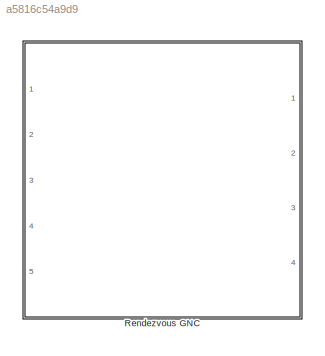
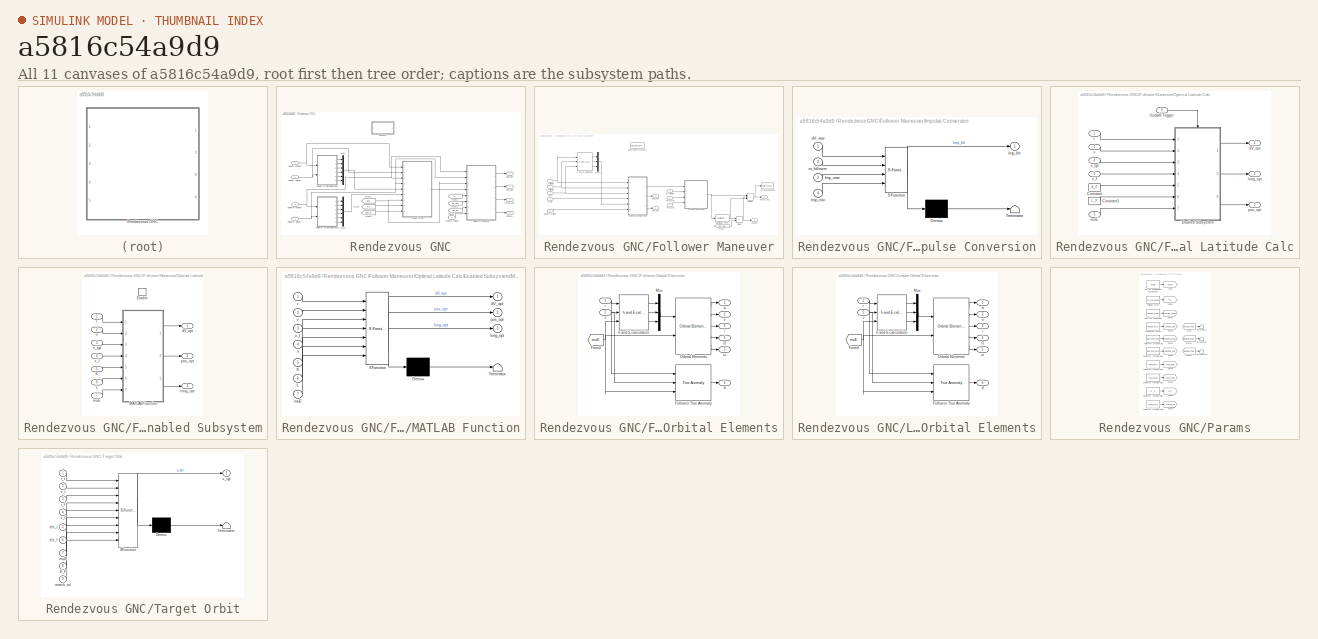
[diagram: thumbnail index - all 11 canvases of the model, root first then tree order]
MODEL slx_a5816c54a9d9
KIND model
CONFIG AbsTol = auto
CONFIG EnableMultiTasking = off
CONFIG FixedStep = auto
CONFIG MaxStep = auto
CONFIG MinStep = auto
CONFIG RelTol = 1e-3
CONFIG SampleTimeConstraint = Unconstrained
CONFIG Solver = VariableStepAuto
CONFIG SolverName = VariableStepAuto
CONFIG StartTime = 0.0
CONFIG StopTime = 10.0
BLOCK [SubSystem] Rendezvous GNC
  Ports = [5, 4]
  RequestExecContextInheritance = off
  Variant = off
BLOCK [SubSystem] Rendezvous GNC/Follower Maneuver
  Ports = [8, 4]
  RequestExecContextInheritance = off
  Variant = off
BLOCK [DataStoreMemory] Rendezvous GNC/Follower Maneuver/Data Store Memory
  DataStoreName = man_flag
  ShowAdditionalParam = off
  WriteAfterReadMsg = warning
  WriteAfterWriteMsg = warning
BLOCK [Product] Rendezvous GNC/Follower Maneuver/Divide
  InputSameDT = off
  Inputs = */
  OutDataTypeStr = Inherit: Inherit via internal rule
  Ports = [2, 1]
  RndMeth = Floor
  SaturateOnIntegerOverflow = off
BLOCK [Product] Rendezvous GNC/Follower Maneuver/Divide1
  InputSameDT = off
  Inputs = **/
  OutDataTypeStr = Inherit: Inherit via internal rule
  Ports = [3, 1]
  RndMeth = Floor
  SaturateOnIntegerOverflow = off
BLOCK [Reference] Rendezvous GNC/Follower Maneuver/Euclidean norm  REF=hEemethod/Math Operations/Euclidean norm
  Ports = [1, 1]
  SourceBlock = hEemethod/Math Operations/Euclidean norm
  SourceProductName = HEe Method Library
  SourceType = Euclidean Norm
BLOCK [From] Rendezvous GNC/Follower Maneuver/From4
  GotoTag = Thrust_max
  TagVisibility = global
BLOCK [Inport] Rendezvous GNC/Follower Maneuver/Imp_max
  IconDisplay = Port number
  Port = 6
BLOCK [Inport] Rendezvous GNC/Follower Maneuver/Imp_min
  IconDisplay = Port number
  Port = 7
BLOCK [SubSystem] Rendezvous GNC/Follower Maneuver/Impulse Conversion
  ErrorFcn = Stateflow.Translate.translate
  PermitHierarchicalResolution = ExplicitOnly
  Ports = [4, 1]
  RequestExecContextInheritance = off
  SFBlockType = MATLAB Function
  TreatAsAtomicUnit = on
  Variant = off
BLOCK [Demux] Rendezvous GNC/Follower Maneuver/Impulse Conversion/ Demux 
  Outputs = 1
  Ports = [1, 1]
BLOCK [S-Function] Rendezvous GNC/Follower Maneuver/Impulse Conversion/ SFunction 
  EnableBusSupport = on
  FunctionName = sf_sfun
  PortCounts = [4 2]
  Ports = [4, 2]
  SFcnIsStateOwnerBlock = off
  SFunctionDeploymentMode = off
  Tag = Stateflow S-Function PAN_rendezvous_GNC_block 7
BLOCK [Terminator] Rendezvous GNC/Follower Maneuver/Impulse Conversion/ Terminator 
BLOCK [Outport] Rendezvous GNC/Follower Maneuver/Impulse Conversion/Imp_filt
  IconDisplay = Port number
BLOCK [Inport] Rendezvous GNC/Follower Maneuver/Impulse Conversion/Imp_max
  IconDisplay = Port number
  Port = 3
BLOCK [Inport] Rendezvous GNC/Follower Maneuver/Impulse Conversion/Imp_min
  IconDisplay = Port number
  Port = 4
BLOCK [Inport] Rendezvous GNC/Follower Maneuver/Impulse Conversion/dV_raw
  IconDisplay = Port number
BLOCK [Inport] Rendezvous GNC/Follower Maneuver/Impulse Conversion/m_follower
  IconDisplay = Port number
  Port = 2
BLOCK [Mux] Rendezvous GNC/Follower Maneuver/Mux1
  DisplayOption = bar
  Inputs = 3
  Ports = [3, 1]
BLOCK [SubSystem] Rendezvous GNC/Follower Maneuver/Optimal Latitude Calc
  Ports = [6, 3]
  RequestExecContextInheritance = off
  Variant = off
BLOCK [Constant] Rendezvous GNC/Follower Maneuver/Optimal Latitude Calc/Constant
  Value = K_F
BLOCK [Constant] Rendezvous GNC/Follower Maneuver/Optimal Latitude Calc/Constant1
  Value = L_F
BLOCK [SubSystem] Rendezvous GNC/Follower Maneuver/Optimal Latitude Calc/Enabled Subsystem
  Ports = [7, 3, 1]
  RequestExecContextInheritance = off
  TreatAsAtomicUnit = on
  Variant = off
BLOCK [EnablePort] Rendezvous GNC/Follower Maneuver/Optimal Latitude Calc/Enabled Subsystem/Enable
  Ports = []
BLOCK [Inport] Rendezvous GNC/Follower Maneuver/Optimal Latitude Calc/Enabled Subsystem/K
  IconDisplay = Port number
  Port = 5
BLOCK [Inport] Rendezvous GNC/Follower Maneuver/Optimal Latitude Calc/Enabled Subsystem/L
  IconDisplay = Port number
  Port = 6
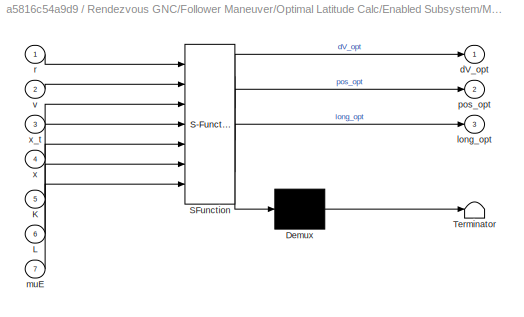
BLOCK [SubSystem] Rendezvous GNC/Follower Maneuver/Optimal Latitude Calc/Enabled Subsystem/MATLAB Function
  ErrorFcn = Stateflow.Translate.translate
  PermitHierarchicalResolution = ExplicitOnly
  Ports = [7, 3]
  RequestExecContextInheritance = off
  SFBlockType = MATLAB Function
  TreatAsAtomicUnit = on
  Variant = off
BLOCK [Demux] Rendezvous GNC/Follower Maneuver/Optimal Latitude Calc/Enabled Subsystem/MATLAB Function/ Demux 
  Outputs = 1
  Ports = [1, 1]
BLOCK [S-Function] Rendezvous GNC/Follower Maneuver/Optimal Latitude Calc/Enabled Subsystem/MATLAB Function/ SFunction 
  EnableBusSupport = on
  FunctionName = sf_sfun
  PortCounts = [7 4]
  Ports = [7, 4]
  SFcnIsStateOwnerBlock = off
  SFunctionDeploymentMode = off
  Tag = Stateflow S-Function PAN_rendezvous_GNC_block 5
BLOCK [Terminator] Rendezvous GNC/Follower Maneuver/Optimal Latitude Calc/Enabled Subsystem/MATLAB Function/ Terminator 
BLOCK [Inport] Rendezvous GNC/Follower Maneuver/Optimal Latitude Calc/Enabled Subsystem/MATLAB Function/K
  IconDisplay = Port number
  Port = 5
BLOCK [Inport] Rendezvous GNC/Follower Maneuver/Optimal Latitude Calc/Enabled Subsystem/MATLAB Function/L
  IconDisplay = Port number
  Port = 6
BLOCK [Outport] Rendezvous GNC/Follower Maneuver/Optimal Latitude Calc/Enabled Subsystem/MATLAB Function/dV_opt
  IconDisplay = Port number
BLOCK [Outport] Rendezvous GNC/Follower Maneuver/Optimal Latitude Calc/Enabled Subsystem/MATLAB Function/long_opt
  IconDisplay = Port number
  Port = 3
BLOCK [Inport] Rendezvous GNC/Follower Maneuver/Optimal Latitude Calc/Enabled Subsystem/MATLAB Function/muE
  IconDisplay = Port number
  Port = 7
BLOCK [Outport] Rendezvous GNC/Follower Maneuver/Optimal Latitude Calc/Enabled Subsystem/MATLAB Function/pos_opt
  IconDisplay = Port number
  Port = 2
BLOCK [Inport] Rendezvous GNC/Follower Maneuver/Optimal Latitude Calc/Enabled Subsystem/MATLAB Function/r
  IconDisplay = Port number
BLOCK [Inport] Rendezvous GNC/Follower Maneuver/Optimal Latitude Calc/Enabled Subsystem/MATLAB Function/v
  IconDisplay = Port number
  Port = 2
BLOCK [Inport] Rendezvous GNC/Follower Maneuver/Optimal Latitude Calc/Enabled Subsystem/MATLAB Function/x
  IconDisplay = Port number
  Port = 4
BLOCK [Inport] Rendezvous GNC/Follower Maneuver/Optimal Latitude Calc/Enabled Subsystem/MATLAB Function/x_t
  IconDisplay = Port number
  Port = 3
BLOCK [Outport] Rendezvous GNC/Follower Maneuver/Optimal Latitude Calc/Enabled Subsystem/dV_opt
  IconDisplay = Port number
BLOCK [Outport] Rendezvous GNC/Follower Maneuver/Optimal Latitude Calc/Enabled Subsystem/long_opt
  IconDisplay = Port number
  Port = 2
BLOCK [Inport] Rendezvous GNC/Follower Maneuver/Optimal Latitude Calc/Enabled Subsystem/muE 
  IconDisplay = Port number
  Port = 7
BLOCK [Outport] Rendezvous GNC/Follower Maneuver/Optimal Latitude Calc/Enabled Subsystem/pos_opt
  IconDisplay = Port number
  Port = 3
BLOCK [Inport] Rendezvous GNC/Follower Maneuver/Optimal Latitude Calc/Enabled Subsystem/r
  IconDisplay = Port number
BLOCK [Inport] Rendezvous GNC/Follower Maneuver/Optimal Latitude Calc/Enabled Subsystem/v
  IconDisplay = Port number
  Port = 2
BLOCK [Inport] Rendezvous GNC/Follower Maneuver/Optimal Latitude Calc/Enabled Subsystem/x_f
  IconDisplay = Port number
  Port = 4
BLOCK [Inport] Rendezvous GNC/Follower Maneuver/Optimal Latitude Calc/Enabled Subsystem/x_tgt
  IconDisplay = Port number
  Port = 3
BLOCK [Inport] Rendezvous GNC/Follower Maneuver/Optimal Latitude Calc/Update Trigger
  IconDisplay = Port number
  Port = 6
BLOCK [Outport] Rendezvous GNC/Follower Maneuver/Optimal Latitude Calc/dV_opt
  IconDisplay = Port number
BLOCK [Outport] Rendezvous GNC/Follower Maneuver/Optimal Latitude Calc/long_opt
  IconDisplay = Port number
  Port = 2
BLOCK [Inport] Rendezvous GNC/Follower Maneuver/Optimal Latitude Calc/muE
  IconDisplay = Port number
  Port = 3
BLOCK [Outport] Rendezvous GNC/Follower Maneuver/Optimal Latitude Calc/pos_opt
  IconDisplay = Port number
  Port = 3
BLOCK [Inport] Rendezvous GNC/Follower Maneuver/Optimal Latitude Calc/r 
  IconDisplay = Port number
BLOCK [Inport] Rendezvous GNC/Follower Maneuver/Optimal Latitude Calc/v 
  IconDisplay = Port number
  Port = 2
BLOCK [Inport] Rendezvous GNC/Follower Maneuver/Optimal Latitude Calc/x_f
  IconDisplay = Port number
  Port = 5
BLOCK [Inport] Rendezvous GNC/Follower Maneuver/Optimal Latitude Calc/x_tgt
  IconDisplay = Port number
  Port = 4
BLOCK [Outport] Rendezvous GNC/Follower Maneuver/Thrust_vec
  IconDisplay = Port number
  Port = 3
BLOCK [ToWorkspace] Rendezvous GNC/Follower Maneuver/To Workspace2
  FixptAsFi = on
  MaxDataPoints = inf
  Ports = [1]
  SampleTime = -1
  Save2DSignal = 3-D array (concatenate along third dimension)
  SaveFormat = Timeseries
  VariableName = Thrust_vec
BLOCK [Inport] Rendezvous GNC/Follower Maneuver/Update Trigger
  IconDisplay = Port number
  Port = 8
BLOCK [Reference] Rendezvous GNC/Follower Maneuver/h and E calculation  REF=hEemethod/Math Operations/h and E calculation
  Ports = [3, 3]
  SourceBlock = hEemethod/Math Operations/h and E calculation
  SourceProductName = HEe Method Library
  SourceType = hEe Calculation
BLOCK [Outport] Rendezvous GNC/Follower Maneuver/long_opt
  IconDisplay = Port number
BLOCK [Inport] Rendezvous GNC/Follower Maneuver/m_follower
  IconDisplay = Port number
  Port = 5
BLOCK [Inport] Rendezvous GNC/Follower Maneuver/mu
  IconDisplay = Port number
  Port = 3
BLOCK [Outport] Rendezvous GNC/Follower Maneuver/ontime
  IconDisplay = Port number
  Port = 4
BLOCK [Outport] Rendezvous GNC/Follower Maneuver/pos_opt
  IconDisplay = Port number
  Port = 2
BLOCK [Inport] Rendezvous GNC/Follower Maneuver/r_follower
  IconDisplay = Port number
BLOCK [Inport] Rendezvous GNC/Follower Maneuver/v_follower
  IconDisplay = Port number
  Port = 2
BLOCK [Inport] Rendezvous GNC/Follower Maneuver/x_tgt
  IconDisplay = Port number
  Port = 4
BLOCK [SubSystem] Rendezvous GNC/Follower Orbital Elements
  Ports = [2, 6]
  RequestExecContextInheritance = off
  Variant = off
BLOCK [Reference] Rendezvous GNC/Follower Orbital Elements/Follower True Anomaly  REF=hEemethod/Math Operations/True Anomaly
  Ports = [3, 1]
  SourceBlock = hEemethod/Math Operations/True Anomaly
  SourceProductName = HEe Method Library
  SourceType = True Anomaly
BLOCK [From] Rendezvous GNC/Follower Orbital Elements/From4
  GotoTag = muE
  TagVisibility = global
BLOCK [Mux] Rendezvous GNC/Follower Orbital Elements/Mux
  DisplayOption = bar
  Inputs = 3
  Ports = [3, 1]
BLOCK [Reference] Rendezvous GNC/Follower Orbital Elements/Orbital Elements  REF=hEemethod/Math Operations/Orbital Elements
  Ports = [2, 5]
  SourceBlock = hEemethod/Math Operations/Orbital Elements
  SourceProductName = HEe Method Library
  SourceType = Orbital Elements
BLOCK [Outport] Rendezvous GNC/Follower Orbital Elements/a
  IconDisplay = Port number
BLOCK [Outport] Rendezvous GNC/Follower Orbital Elements/e
  IconDisplay = Port number
  Port = 2
BLOCK [Reference] Rendezvous GNC/Follower Orbital Elements/h and E calculation  REF=hEemethod/Math Operations/h and E calculation
  Ports = [3, 3]
  SourceBlock = hEemethod/Math Operations/h and E calculation
  SourceProductName = HEe Method Library
  SourceType = hEe Calculation
BLOCK [Outport] Rendezvous GNC/Follower Orbital Elements/i
  IconDisplay = Port number
  Port = 3
BLOCK [Inport] Rendezvous GNC/Follower Orbital Elements/r
  IconDisplay = Port number
BLOCK [Inport] Rendezvous GNC/Follower Orbital Elements/v
  IconDisplay = Port number
  Port = 2
BLOCK [Outport] Rendezvous GNC/Follower Orbital Elements/Ω
  IconDisplay = Port number
  Port = 4
BLOCK [Outport] Rendezvous GNC/Follower Orbital Elements/θ
  IconDisplay = Port number
  Port = 6
BLOCK [Outport] Rendezvous GNC/Follower Orbital Elements/ω
  IconDisplay = Port number
  Port = 5
BLOCK [Inport] Rendezvous GNC/Follower Position
  IconDisplay = Port number
BLOCK [Inport] Rendezvous GNC/Follower Velocity
  IconDisplay = Port number
  Port = 2
BLOCK [From] Rendezvous GNC/From1
  GotoTag = m_f
  TagVisibility = global
BLOCK [From] Rendezvous GNC/From2
  GotoTag = Imp_max
  TagVisibility = global
BLOCK [From] Rendezvous GNC/From3
  GotoTag = muE
  TagVisibility = global
BLOCK [From] Rendezvous GNC/From4
  GotoTag = K_F
  TagVisibility = global
BLOCK [From] Rendezvous GNC/From5
  GotoTag = match_tol
  TagVisibility = global
BLOCK [From] Rendezvous GNC/From6
  GotoTag = Imp_min
  TagVisibility = global
BLOCK [SubSystem] Rendezvous GNC/Leader Orbital Elements
  Ports = [2, 6]
  RequestExecContextInheritance = off
  Variant = off
BLOCK [Reference] Rendezvous GNC/Leader Orbital Elements/Follower True Anomaly  REF=hEemethod/Math Operations/True Anomaly
  Ports = [3, 1]
  SourceBlock = hEemethod/Math Operations/True Anomaly
  SourceProductName = HEe Method Library
  SourceType = True Anomaly
BLOCK [From] Rendezvous GNC/Leader Orbital Elements/From4
  GotoTag = muE
  TagVisibility = global
BLOCK [Mux] Rendezvous GNC/Leader Orbital Elements/Mux
  DisplayOption = bar
  Inputs = 3
  Ports = [3, 1]
BLOCK [Reference] Rendezvous GNC/Leader Orbital Elements/Orbital Elements  REF=hEemethod/Math Operations/Orbital Elements
  Ports = [2, 5]
  SourceBlock = hEemethod/Math Operations/Orbital Elements
  SourceProductName = HEe Method Library
  SourceType = Orbital Elements
BLOCK [Outport] Rendezvous GNC/Leader Orbital Elements/a
  IconDisplay = Port number
BLOCK [Outport] Rendezvous GNC/Leader Orbital Elements/e
  IconDisplay = Port number
  Port = 2
BLOCK [Reference] Rendezvous GNC/Leader Orbital Elements/h and E calculation  REF=hEemethod/Math Operations/h and E calculation
  Ports = [3, 3]
  SourceBlock = hEemethod/Math Operations/h and E calculation
  SourceProductName = HEe Method Library
  SourceType = hEe Calculation
BLOCK [Outport] Rendezvous GNC/Leader Orbital Elements/i
  IconDisplay = Port number
  Port = 3
BLOCK [Inport] Rendezvous GNC/Leader Orbital Elements/r
  IconDisplay = Port number
BLOCK [Inport] Rendezvous GNC/Leader Orbital Elements/v
  IconDisplay = Port number
  Port = 2
BLOCK [Outport] Rendezvous GNC/Leader Orbital Elements/Ω
  IconDisplay = Port number
  Port = 4
BLOCK [Outport] Rendezvous GNC/Leader Orbital Elements/θ
  IconDisplay = Port number
  Port = 6
BLOCK [Outport] Rendezvous GNC/Leader Orbital Elements/ω
  IconDisplay = Port number
  Port = 5
BLOCK [Inport] Rendezvous GNC/Leader Position
  IconDisplay = Port number
  Port = 3
BLOCK [Inport] Rendezvous GNC/Leader Velocity
  IconDisplay = Port number
  Port = 4
BLOCK [Mux] Rendezvous GNC/Mux
  DisplayOption = bar
  Inputs = 6
  Ports = [6, 1]
BLOCK [Mux] Rendezvous GNC/Mux1
  DisplayOption = bar
  Inputs = 6
  Ports = [6, 1]
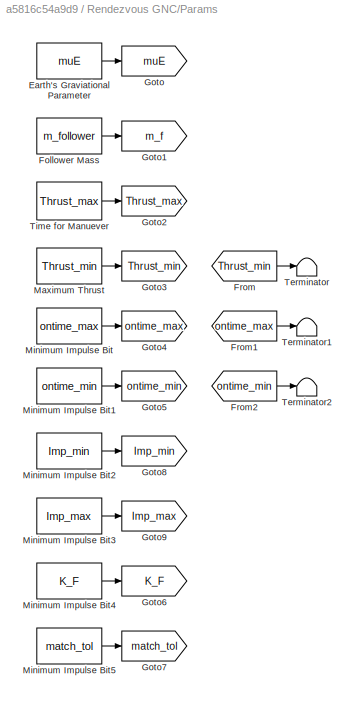
BLOCK [SubSystem] Rendezvous GNC/Params
  Ports = []
  RequestExecContextInheritance = off
  Variant = off
BLOCK [Constant] Rendezvous GNC/Params/Earth's Graviational Parameter
  Value = muE
BLOCK [Constant] Rendezvous GNC/Params/Follower Mass
  Value = m_follower
BLOCK [From] Rendezvous GNC/Params/From
  GotoTag = Thrust_min
  TagVisibility = global
BLOCK [From] Rendezvous GNC/Params/From1
  GotoTag = ontime_max
  TagVisibility = global
BLOCK [From] Rendezvous GNC/Params/From2
  GotoTag = ontime_min
  TagVisibility = global
BLOCK [Goto] Rendezvous GNC/Params/Goto
  GotoTag = muE
  TagVisibility = global
BLOCK [Goto] Rendezvous GNC/Params/Goto1
  GotoTag = m_f
  TagVisibility = global
BLOCK [Goto] Rendezvous GNC/Params/Goto2
  GotoTag = Thrust_max
  TagVisibility = global
BLOCK [Goto] Rendezvous GNC/Params/Goto3
  GotoTag = Thrust_min
  TagVisibility = global
BLOCK [Goto] Rendezvous GNC/Params/Goto4
  GotoTag = ontime_max
  TagVisibility = global
BLOCK [Goto] Rendezvous GNC/Params/Goto5
  GotoTag = ontime_min
  TagVisibility = global
BLOCK [Goto] Rendezvous GNC/Params/Goto6
  GotoTag = K_F
  TagVisibility = global
BLOCK [Goto] Rendezvous GNC/Params/Goto7
  GotoTag = match_tol
  TagVisibility = global
BLOCK [Goto] Rendezvous GNC/Params/Goto8
  GotoTag = Imp_min
  TagVisibility = global
BLOCK [Goto] Rendezvous GNC/Params/Goto9
  GotoTag = Imp_max
  TagVisibility = global
BLOCK [Constant] Rendezvous GNC/Params/Maximum Thrust
  Value = Thrust_min
BLOCK [Constant] Rendezvous GNC/Params/Minimum Impulse Bit
  Value = ontime_max
BLOCK [Constant] Rendezvous GNC/Params/Minimum Impulse Bit1
  Value = ontime_min
BLOCK [Constant] Rendezvous GNC/Params/Minimum Impulse Bit2
  Value = Imp_min
BLOCK [Constant] Rendezvous GNC/Params/Minimum Impulse Bit3
  Value = Imp_max
BLOCK [Constant] Rendezvous GNC/Params/Minimum Impulse Bit4
  Value = K_F
BLOCK [Constant] Rendezvous GNC/Params/Minimum Impulse Bit5
  Value = match_tol
BLOCK [Terminator] Rendezvous GNC/Params/Terminator
BLOCK [Terminator] Rendezvous GNC/Params/Terminator1
BLOCK [Terminator] Rendezvous GNC/Params/Terminator2
BLOCK [Constant] Rendezvous GNC/Params/Time for Manuever
  Value = Thrust_max
BLOCK [SubSystem] Rendezvous GNC/Target Orbit
  ErrorFcn = Stateflow.Translate.translate
  PermitHierarchicalResolution = ExplicitOnly
  Ports = [9, 1]
  RequestExecContextInheritance = off
  SFBlockType = MATLAB Function
  TreatAsAtomicUnit = on
  Variant = off
BLOCK [Demux] Rendezvous GNC/Target Orbit/ Demux 
  Outputs = 1
  Ports = [1, 1]
BLOCK [S-Function] Rendezvous GNC/Target Orbit/ SFunction 
  EnableBusSupport = on
  FunctionName = sf_sfun
  PortCounts = [9 2]
  Ports = [9, 2]
  SFcnIsStateOwnerBlock = off
  SFunctionDeploymentMode = off
  Tag = Stateflow S-Function PAN_rendezvous_GNC_block 4
BLOCK [Terminator] Rendezvous GNC/Target Orbit/ Terminator 
BLOCK [Inport] Rendezvous GNC/Target Orbit/K_F
  IconDisplay = Port number
  Port = 8
BLOCK [Inport] Rendezvous GNC/Target Orbit/els_f
  IconDisplay = Port number
  Port = 6
BLOCK [Inport] Rendezvous GNC/Target Orbit/els_t
  IconDisplay = Port number
  Port = 5
BLOCK [Inport] Rendezvous GNC/Target Orbit/match_tol
  IconDisplay = Port number
  Port = 9
BLOCK [Inport] Rendezvous GNC/Target Orbit/muE
  IconDisplay = Port number
  Port = 7
BLOCK [Inport] Rendezvous GNC/Target Orbit/r_f
  IconDisplay = Port number
  Port = 3
BLOCK [Inport] Rendezvous GNC/Target Orbit/r_t
  IconDisplay = Port number
BLOCK [Inport] Rendezvous GNC/Target Orbit/v_f
  IconDisplay = Port number
  Port = 4
BLOCK [Inport] Rendezvous GNC/Target Orbit/v_t
  IconDisplay = Port number
  Port = 2
BLOCK [Outport] Rendezvous GNC/Target Orbit/x_tgt
  IconDisplay = Port number
BLOCK [Outport] Rendezvous GNC/Thrust_vec
  IconDisplay = Port number
  Port = 3
BLOCK [Inport] Rendezvous GNC/Update Trigger
  IconDisplay = Port number
  Port = 5
BLOCK [Outport] Rendezvous GNC/long_opt
  IconDisplay = Port number
BLOCK [Outport] Rendezvous GNC/ontime
  IconDisplay = Port number
  Port = 4
BLOCK [Outport] Rendezvous GNC/pos_opt
  IconDisplay = Port number
  Port = 2
NET Rendezvous GNC/Follower Maneuver/Divide1:1 -> Rendezvous GNC/Follower Maneuver/Thrust_vec:1, Rendezvous GNC/Follower Maneuver/To Workspace2:1
NET Rendezvous GNC/Follower Maneuver/Divide:1 -> Rendezvous GNC/Follower Maneuver/Divide1:2, Rendezvous GNC/Follower Maneuver/ontime:1
NET Rendezvous GNC/Follower Maneuver/Euclidean norm:1 -> Rendezvous GNC/Follower Maneuver/Divide1:3, Rendezvous GNC/Follower Maneuver/Divide:1
LINE Rendezvous GNC/Follower Maneuver/From4:1 -> Rendezvous GNC/Follower Maneuver/Divide:2
LINE Rendezvous GNC/Follower Maneuver/Imp_max:1 -> Rendezvous GNC/Follower Maneuver/Impulse Conversion:3
LINE Rendezvous GNC/Follower Maneuver/Imp_min:1 -> Rendezvous GNC/Follower Maneuver/Impulse Conversion:4
NET Rendezvous GNC/Follower Maneuver/Impulse Conversion:1 -> Rendezvous GNC/Follower Maneuver/Divide1:1, Rendezvous GNC/Follower Maneuver/Euclidean norm:1
LINE Rendezvous GNC/Follower Maneuver/Mux1:1 -> Rendezvous GNC/Follower Maneuver/Optimal Latitude Calc:5
LINE Rendezvous GNC/Follower Maneuver/Optimal Latitude Calc/Constant1:1 -> Rendezvous GNC/Follower Maneuver/Optimal Latitude Calc/Enabled Subsystem:6
LINE Rendezvous GNC/Follower Maneuver/Optimal Latitude Calc/Constant:1 -> Rendezvous GNC/Follower Maneuver/Optimal Latitude Calc/Enabled Subsystem:5
LINE Rendezvous GNC/Follower Maneuver/Optimal Latitude Calc/Enabled Subsystem/K:1 -> Rendezvous GNC/Follower Maneuver/Optimal Latitude Calc/Enabled Subsystem/MATLAB Function:5
LINE Rendezvous GNC/Follower Maneuver/Optimal Latitude Calc/Enabled Subsystem/L:1 -> Rendezvous GNC/Follower Maneuver/Optimal Latitude Calc/Enabled Subsystem/MATLAB Function:6
LINE Rendezvous GNC/Follower Maneuver/Optimal Latitude Calc/Enabled Subsystem/MATLAB Function:1 -> Rendezvous GNC/Follower Maneuver/Optimal Latitude Calc/Enabled Subsystem/dV_opt:1
LINE Rendezvous GNC/Follower Maneuver/Optimal Latitude Calc/Enabled Subsystem/MATLAB Function:2 -> Rendezvous GNC/Follower Maneuver/Optimal Latitude Calc/Enabled Subsystem/pos_opt:1
LINE Rendezvous GNC/Follower Maneuver/Optimal Latitude Calc/Enabled Subsystem/MATLAB Function:3 -> Rendezvous GNC/Follower Maneuver/Optimal Latitude Calc/Enabled Subsystem/long_opt:1
LINE Rendezvous GNC/Follower Maneuver/Optimal Latitude Calc/Enabled Subsystem/muE :1 -> Rendezvous GNC/Follower Maneuver/Optimal Latitude Calc/Enabled Subsystem/MATLAB Function:7
LINE Rendezvous GNC/Follower Maneuver/Optimal Latitude Calc/Enabled Subsystem/r:1 -> Rendezvous GNC/Follower Maneuver/Optimal Latitude Calc/Enabled Subsystem/MATLAB Function:1
LINE Rendezvous GNC/Follower Maneuver/Optimal Latitude Calc/Enabled Subsystem/v:1 -> Rendezvous GNC/Follower Maneuver/Optimal Latitude Calc/Enabled Subsystem/MATLAB Function:2
LINE Rendezvous GNC/Follower Maneuver/Optimal Latitude Calc/Enabled Subsystem/x_f:1 -> Rendezvous GNC/Follower Maneuver/Optimal Latitude Calc/Enabled Subsystem/MATLAB Function:4
LINE Rendezvous GNC/Follower Maneuver/Optimal Latitude Calc/Enabled Subsystem/x_tgt:1 -> Rendezvous GNC/Follower Maneuver/Optimal Latitude Calc/Enabled Subsystem/MATLAB Function:3
LINE Rendezvous GNC/Follower Maneuver/Optimal Latitude Calc/Enabled Subsystem:1 -> Rendezvous GNC/Follower Maneuver/Optimal Latitude Calc/dV_opt:1
LINE Rendezvous GNC/Follower Maneuver/Optimal Latitude Calc/Enabled Subsystem:2 -> Rendezvous GNC/Follower Maneuver/Optimal Latitude Calc/long_opt:1
LINE Rendezvous GNC/Follower Maneuver/Optimal Latitude Calc/Enabled Subsystem:3 -> Rendezvous GNC/Follower Maneuver/Optimal Latitude Calc/pos_opt:1
LINE Rendezvous GNC/Follower Maneuver/Optimal Latitude Calc/Update Trigger:1 -> Rendezvous GNC/Follower Maneuver/Optimal Latitude Calc/Enabled Subsystem:enable
LINE Rendezvous GNC/Follower Maneuver/Optimal Latitude Calc/muE:1 -> Rendezvous GNC/Follower Maneuver/Optimal Latitude Calc/Enabled Subsystem:7
LINE Rendezvous GNC/Follower Maneuver/Optimal Latitude Calc/r :1 -> Rendezvous GNC/Follower Maneuver/Optimal Latitude Calc/Enabled Subsystem:1
LINE Rendezvous GNC/Follower Maneuver/Optimal Latitude Calc/v :1 -> Rendezvous GNC/Follower Maneuver/Optimal Latitude Calc/Enabled Subsystem:2
LINE Rendezvous GNC/Follower Maneuver/Optimal Latitude Calc/x_f:1 -> Rendezvous GNC/Follower Maneuver/Optimal Latitude Calc/Enabled Subsystem:4
LINE Rendezvous GNC/Follower Maneuver/Optimal Latitude Calc/x_tgt:1 -> Rendezvous GNC/Follower Maneuver/Optimal Latitude Calc/Enabled Subsystem:3
LINE Rendezvous GNC/Follower Maneuver/Optimal Latitude Calc:1 -> Rendezvous GNC/Follower Maneuver/Impulse Conversion:1
LINE Rendezvous GNC/Follower Maneuver/Optimal Latitude Calc:2 -> Rendezvous GNC/Follower Maneuver/long_opt:1
LINE Rendezvous GNC/Follower Maneuver/Optimal Latitude Calc:3 -> Rendezvous GNC/Follower Maneuver/pos_opt:1
LINE Rendezvous GNC/Follower Maneuver/Update Trigger:1 -> Rendezvous GNC/Follower Maneuver/Optimal Latitude Calc:6
LINE Rendezvous GNC/Follower Maneuver/h and E calculation:1 -> Rendezvous GNC/Follower Maneuver/Mux1:1
LINE Rendezvous GNC/Follower Maneuver/h and E calculation:2 -> Rendezvous GNC/Follower Maneuver/Mux1:2
LINE Rendezvous GNC/Follower Maneuver/h and E calculation:3 -> Rendezvous GNC/Follower Maneuver/Mux1:3
LINE Rendezvous GNC/Follower Maneuver/m_follower:1 -> Rendezvous GNC/Follower Maneuver/Impulse Conversion:2
NET Rendezvous GNC/Follower Maneuver/mu:1 -> Rendezvous GNC/Follower Maneuver/Optimal Latitude Calc:3, Rendezvous GNC/Follower Maneuver/h and E calculation:3
NET Rendezvous GNC/Follower Maneuver/r_follower:1 -> Rendezvous GNC/Follower Maneuver/Optimal Latitude Calc:1, Rendezvous GNC/Follower Maneuver/h and E calculation:1
NET Rendezvous GNC/Follower Maneuver/v_follower:1 -> Rendezvous GNC/Follower Maneuver/Optimal Latitude Calc:2, Rendezvous GNC/Follower Maneuver/h and E calculation:2
LINE Rendezvous GNC/Follower Maneuver/x_tgt:1 -> Rendezvous GNC/Follower Maneuver/Optimal Latitude Calc:4
LINE Rendezvous GNC/Follower Maneuver:1 -> Rendezvous GNC/long_opt:1
LINE Rendezvous GNC/Follower Maneuver:2 -> Rendezvous GNC/pos_opt:1
LINE Rendezvous GNC/Follower Maneuver:3 -> Rendezvous GNC/Thrust_vec:1
LINE Rendezvous GNC/Follower Maneuver:4 -> Rendezvous GNC/ontime:1
LINE Rendezvous GNC/Follower Orbital Elements/Follower True Anomaly:1 -> Rendezvous GNC/Follower Orbital Elements/θ:1
NET Rendezvous GNC/Follower Orbital Elements/From4:1 -> Rendezvous GNC/Follower Orbital Elements/Follower True Anomaly:3, Rendezvous GNC/Follower Orbital Elements/Orbital Elements:2, Rendezvous GNC/Follower Orbital Elements/h and E calculation:3
LINE Rendezvous GNC/Follower Orbital Elements/Mux:1 -> Rendezvous GNC/Follower Orbital Elements/Orbital Elements:1
LINE Rendezvous GNC/Follower Orbital Elements/Orbital Elements:1 -> Rendezvous GNC/Follower Orbital Elements/a:1
LINE Rendezvous GNC/Follower Orbital Elements/Orbital Elements:2 -> Rendezvous GNC/Follower Orbital Elements/e:1
LINE Rendezvous GNC/Follower Orbital Elements/Orbital Elements:3 -> Rendezvous GNC/Follower Orbital Elements/i:1
LINE Rendezvous GNC/Follower Orbital Elements/Orbital Elements:4 -> Rendezvous GNC/Follower Orbital Elements/Ω:1
LINE Rendezvous GNC/Follower Orbital Elements/Orbital Elements:5 -> Rendezvous GNC/Follower Orbital Elements/ω:1
LINE Rendezvous GNC/Follower Orbital Elements/h and E calculation:1 -> Rendezvous GNC/Follower Orbital Elements/Mux:1
LINE Rendezvous GNC/Follower Orbital Elements/h and E calculation:2 -> Rendezvous GNC/Follower Orbital Elements/Mux:2
LINE Rendezvous GNC/Follower Orbital Elements/h and E calculation:3 -> Rendezvous GNC/Follower Orbital Elements/Mux:3
NET Rendezvous GNC/Follower Orbital Elements/r:1 -> Rendezvous GNC/Follower Orbital Elements/Follower True Anomaly:1, Rendezvous GNC/Follower Orbital Elements/h and E calculation:1
NET Rendezvous GNC/Follower Orbital Elements/v:1 -> Rendezvous GNC/Follower Orbital Elements/Follower True Anomaly:2, Rendezvous GNC/Follower Orbital Elements/h and E calculation:2
LINE Rendezvous GNC/Follower Orbital Elements:1 -> Rendezvous GNC/Mux1:1
LINE Rendezvous GNC/Follower Orbital Elements:2 -> Rendezvous GNC/Mux1:2
LINE Rendezvous GNC/Follower Orbital Elements:3 -> Rendezvous GNC/Mux1:3
LINE Rendezvous GNC/Follower Orbital Elements:4 -> Rendezvous GNC/Mux1:4
LINE Rendezvous GNC/Follower Orbital Elements:5 -> Rendezvous GNC/Mux1:5
LINE Rendezvous GNC/Follower Orbital Elements:6 -> Rendezvous GNC/Mux1:6
NET Rendezvous GNC/Follower Position:1 -> Rendezvous GNC/Follower Maneuver:1, Rendezvous GNC/Follower Orbital Elements:1, Rendezvous GNC/Target Orbit:3
NET Rendezvous GNC/Follower Velocity:1 -> Rendezvous GNC/Follower Maneuver:2, Rendezvous GNC/Follower Orbital Elements:2, Rendezvous GNC/Target Orbit:4
LINE Rendezvous GNC/From1:1 -> Rendezvous GNC/Follower Maneuver:5
LINE Rendezvous GNC/From2:1 -> Rendezvous GNC/Follower Maneuver:6
NET Rendezvous GNC/From3:1 -> Rendezvous GNC/Follower Maneuver:3, Rendezvous GNC/Target Orbit:7
LINE Rendezvous GNC/From4:1 -> Rendezvous GNC/Target Orbit:8
LINE Rendezvous GNC/From5:1 -> Rendezvous GNC/Target Orbit:9
LINE Rendezvous GNC/From6:1 -> Rendezvous GNC/Follower Maneuver:7
LINE Rendezvous GNC/Leader Orbital Elements/Follower True Anomaly:1 -> Rendezvous GNC/Leader Orbital Elements/θ:1
NET Rendezvous GNC/Leader Orbital Elements/From4:1 -> Rendezvous GNC/Leader Orbital Elements/Follower True Anomaly:3, Rendezvous GNC/Leader Orbital Elements/Orbital Elements:2, Rendezvous GNC/Leader Orbital Elements/h and E calculation:3
LINE Rendezvous GNC/Leader Orbital Elements/Mux:1 -> Rendezvous GNC/Leader Orbital Elements/Orbital Elements:1
LINE Rendezvous GNC/Leader Orbital Elements/Orbital Elements:1 -> Rendezvous GNC/Leader Orbital Elements/a:1
LINE Rendezvous GNC/Leader Orbital Elements/Orbital Elements:2 -> Rendezvous GNC/Leader Orbital Elements/e:1
LINE Rendezvous GNC/Leader Orbital Elements/Orbital Elements:3 -> Rendezvous GNC/Leader Orbital Elements/i:1
LINE Rendezvous GNC/Leader Orbital Elements/Orbital Elements:4 -> Rendezvous GNC/Leader Orbital Elements/Ω:1
LINE Rendezvous GNC/Leader Orbital Elements/Orbital Elements:5 -> Rendezvous GNC/Leader Orbital Elements/ω:1
LINE Rendezvous GNC/Leader Orbital Elements/h and E calculation:1 -> Rendezvous GNC/Leader Orbital Elements/Mux:1
LINE Rendezvous GNC/Leader Orbital Elements/h and E calculation:2 -> Rendezvous GNC/Leader Orbital Elements/Mux:2
LINE Rendezvous GNC/Leader Orbital Elements/h and E calculation:3 -> Rendezvous GNC/Leader Orbital Elements/Mux:3
NET Rendezvous GNC/Leader Orbital Elements/r:1 -> Rendezvous GNC/Leader Orbital Elements/Follower True Anomaly:1, Rendezvous GNC/Leader Orbital Elements/h and E calculation:1
NET Rendezvous GNC/Leader Orbital Elements/v:1 -> Rendezvous GNC/Leader Orbital Elements/Follower True Anomaly:2, Rendezvous GNC/Leader Orbital Elements/h and E calculation:2
LINE Rendezvous GNC/Leader Orbital Elements:1 -> Rendezvous GNC/Mux:1
LINE Rendezvous GNC/Leader Orbital Elements:2 -> Rendezvous GNC/Mux:2
LINE Rendezvous GNC/Leader Orbital Elements:3 -> Rendezvous GNC/Mux:3
LINE Rendezvous GNC/Leader Orbital Elements:4 -> Rendezvous GNC/Mux:4
LINE Rendezvous GNC/Leader Orbital Elements:5 -> Rendezvous GNC/Mux:5
LINE Rendezvous GNC/Leader Orbital Elements:6 -> Rendezvous GNC/Mux:6
NET Rendezvous GNC/Leader Position:1 -> Rendezvous GNC/Leader Orbital Elements:1, Rendezvous GNC/Target Orbit:1
NET Rendezvous GNC/Leader Velocity:1 -> Rendezvous GNC/Leader Orbital Elements:2, Rendezvous GNC/Target Orbit:2
LINE Rendezvous GNC/Mux1:1 -> Rendezvous GNC/Target Orbit:6
LINE Rendezvous GNC/Mux:1 -> Rendezvous GNC/Target Orbit:5
LINE Rendezvous GNC/Params/Earth's Graviational Parameter:1 -> Rendezvous GNC/Params/Goto:1
LINE Rendezvous GNC/Params/Follower Mass:1 -> Rendezvous GNC/Params/Goto1:1
LINE Rendezvous GNC/Params/From1:1 -> Rendezvous GNC/Params/Terminator1:1
LINE Rendezvous GNC/Params/From2:1 -> Rendezvous GNC/Params/Terminator2:1
LINE Rendezvous GNC/Params/From:1 -> Rendezvous GNC/Params/Terminator:1
LINE Rendezvous GNC/Params/Maximum Thrust:1 -> Rendezvous GNC/Params/Goto3:1
LINE Rendezvous GNC/Params/Minimum Impulse Bit1:1 -> Rendezvous GNC/Params/Goto5:1
LINE Rendezvous GNC/Params/Minimum Impulse Bit2:1 -> Rendezvous GNC/Params/Goto8:1
LINE Rendezvous GNC/Params/Minimum Impulse Bit3:1 -> Rendezvous GNC/Params/Goto9:1
LINE Rendezvous GNC/Params/Minimum Impulse Bit4:1 -> Rendezvous GNC/Params/Goto6:1
LINE Rendezvous GNC/Params/Minimum Impulse Bit5:1 -> Rendezvous GNC/Params/Goto7:1
LINE Rendezvous GNC/Params/Minimum Impulse Bit:1 -> Rendezvous GNC/Params/Goto4:1
LINE Rendezvous GNC/Params/Time for Manuever:1 -> Rendezvous GNC/Params/Goto2:1
LINE Rendezvous GNC/Target Orbit:1 -> Rendezvous GNC/Follower Maneuver:4
LINE Rendezvous GNC/Update Trigger:1 -> Rendezvous GNC/Follower Maneuver:8
note: NET lines group one-source signal fan-out (src -> all destinations, sorted); 1:1 wires keep LINE
CHART Rendezvous GNC/Target Orbit states=1 transitions=1
  STATE_LABEL 'eML_blk_kernel()'
  STATE_LABEL 'SCRIPT:\nfunction x_tgt = x_target(r_t,v_t,r_f,v_f,els_t,els_f,muE,K_F,match_tol)\n\nh_f = cross(r_f,v_f);\nE_f = -muE/(2*els_f(1));\nev_f = cross(v_f,h_f)/muE - r_f/norm(r_f);\nx_f_current = [h_f;E_f;ev_f];\n\nh_t = cross(r_t,v_t);\nE_t = -muE/(2*els_t(1));\nev_t = cross(v_t,h_t)/muE - r_t/norm(r_t);\nx_t_current = [h_t;E_t;ev_t];\n\nif(~orb_matched(x_f_current,x_t_current,K_F,match_tol))\n    x_tgt = x_t_curr...<+488ch>'
CHART Rendezvous GNC/Follower Maneuver/Optimal Latitude Calc/Enabled
Subsystem/MATLAB Function states=1 transitions=1
  STATE_LABEL 'eML_blk_kernel()'
  STATE_LABEL "SCRIPT:\nfunction [dV_opt,pos_opt,long_opt] = fcn(r,v,x_t,x,K,L,muE)\n%#codegen\n\nz0=[r;v];\n\nE=norm(v)^2/2-muE/norm(r);\na=-muE/(2*E);\nT=2*pi/sqrt(muE)*a^(3/2);\n\noptions=odeset('AbsTol',1e-12,'RelTol',1e-12);\ntspan=linspace(0,T,10000);\n[~,zs] = ode45(@orbit1diff,tspan,z0,options,muE,[0;0;0]);\n\ndV_opt = [0;0;0];\npos_opt = [0;0;0];\nmax_rat=0;\nrat=0;\nlong_opt=0;\nN=length(tspan);\nx_f=x;\nx_diff=x_t-x_f;\n% ...<+645ch>"
CHART Rendezvous GNC/Follower Maneuver/Impulse Conversion states=1 transitions=1
  STATE_LABEL 'eML_blk_kernel()'
  STATE_LABEL 'SCRIPT:\nfunction Imp_filt = fcn(dV_raw,m_follower,Imp_max,Imp_min)\n%#codegen\n\nImp_raw = dV_raw*m_follower;\n\nif (norm(Imp_raw)>Imp_max)\n    Imp_red=Imp_raw*(Imp_max/norm(Imp_raw));\nelseif (norm(Imp_raw)<Imp_min)\n    Imp_red=[0;0;0];\nelse\n    Imp_red=Imp_raw;\nend\n\nImp_filt = Imp_red;'
